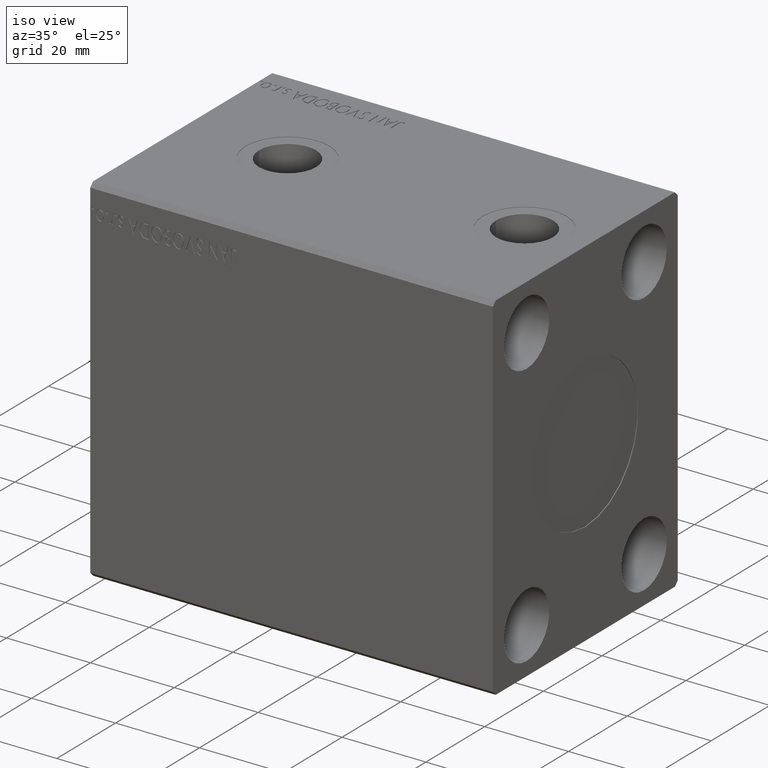
[diagram: clean part render]
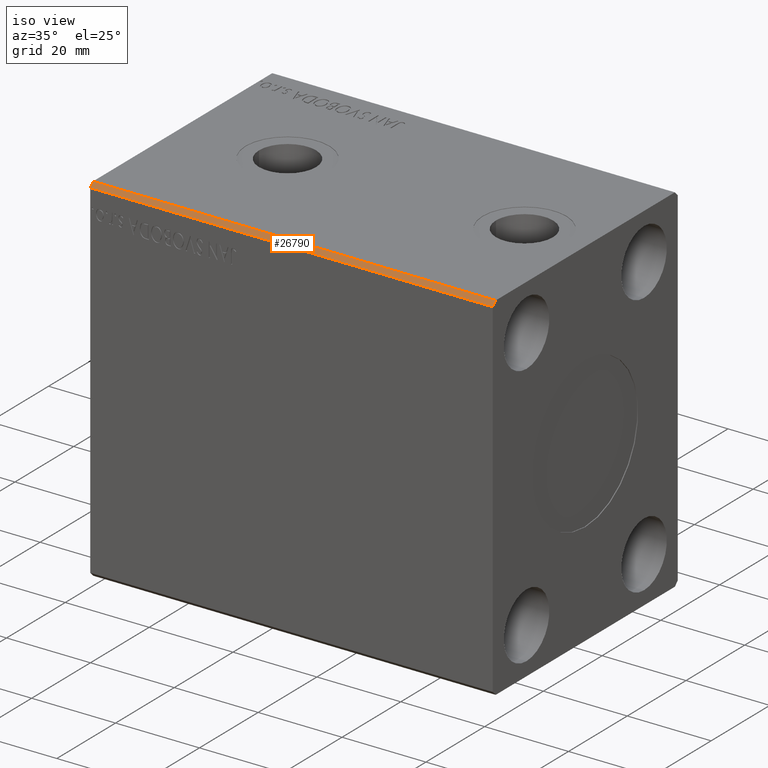
[diagram: same view with one face highlighted and labeled with its STEP entity id]
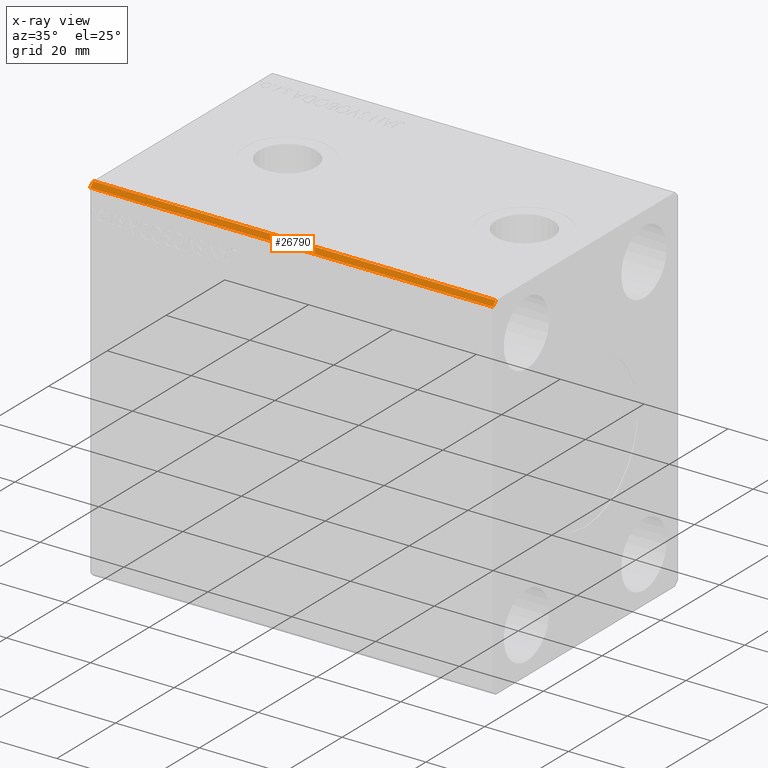
[diagram: x-ray of the same camera — body ghosted, the highlighted face saturated]
A machine part, iso view. The second image highlights one B-rep face of the part: STEP entity #26790.
The next image is the same camera in x-ray: the body ghosted, the highlighted face saturated — about 0% of this face is hidden behind the body in this view.
In plain terms, the highlighted planar face has unit normal (0, 0.7071, -0.7071).
Its self-contained STEP definition (entity closure, byte-faithful):
#260 = VECTOR ( 'NONE', #9717, 999.9999999999998863 ) ;
#507 = DIRECTION ( 'NONE',  ( 0.000000000000000000, 0.7071067811865487940, -0.7071067811865462405 ) ) ;
#714 = FACE_OUTER_BOUND ( 'NONE', #12248, .T. ) ;
#1580 = CARTESIAN_POINT ( 'NONE',  ( 96.00000000000000000, -31.50000000000000000, 41.49999999999999289 ) ) ;
#1790 = LINE ( 'NONE', #1580, #36949 ) ;
#3727 = DIRECTION ( 'NONE',  ( 0.000000000000000000, 0.7071067811865462405, 0.7071067811865487940 ) ) ;
#4194 = VERTEX_POINT ( 'NONE', #24652 ) ;
#4344 = VECTOR ( 'NONE', #23794, 1000.000000000000000 ) ;
#5612 = ORIENTED_EDGE ( 'NONE', *, *, #16651, .T. ) ;
#5986 = AXIS2_PLACEMENT_3D ( 'NONE', #39393, #507, #3727 ) ;
#6614 = ORIENTED_EDGE ( 'NONE', *, *, #29897, .F. ) ;
#9300 = VECTOR ( 'NONE', #23186, 999.9999999999998863 ) ;
#9717 = DIRECTION ( 'NONE',  ( 0.000000000000000000, -0.7071067811865462405, -0.7071067811865489050 ) ) ;
#10071 = LINE ( 'NONE', #29416, #9300 ) ;
#10177 = PLANE ( 'NONE',  #5986 ) ;
#10465 = CARTESIAN_POINT ( 'NONE',  ( 96.00000000000000000, -30.50000000000000355, 42.49999999999999289 ) ) ;
#12248 = EDGE_LOOP ( 'NONE', ( #5612, #6614, #37692, #41190 ) ) ;
#14900 = EDGE_CURVE ( 'NONE', #4194, #42097, #26792, .T. ) ;
#16651 = EDGE_CURVE ( 'NONE', #42097, #18412, #39362, .T. ) ;
#17107 = CARTESIAN_POINT ( 'NONE',  ( 0.000000000000000000, -31.50000000000000000, 41.49999999999999289 ) ) ;
#18412 = VERTEX_POINT ( 'NONE', #17107 ) ;
#22417 = EDGE_CURVE ( 'NONE', #4194, #24331, #10071, .T. ) ;
#23186 = DIRECTION ( 'NONE',  ( 0.000000000000000000, -0.7071067811865462405, -0.7071067811865489050 ) ) ;
#23794 = DIRECTION ( 'NONE',  ( -1.000000000000000000, -0.000000000000000000, -0.000000000000000000 ) ) ;
#24331 = VERTEX_POINT ( 'NONE', #27183 ) ;
#24652 = CARTESIAN_POINT ( 'NONE',  ( 96.00000000000000000, -30.50000000000000355, 42.49999999999999289 ) ) ;
#26046 = CARTESIAN_POINT ( 'NONE',  ( 0.000000000000000000, -30.50000000000000355, 42.49999999999999289 ) ) ;
#26790 = ADVANCED_FACE ( 'NONE', ( #714 ), #10177, .F. ) ;
#26792 = LINE ( 'NONE', #10465, #4344 ) ;
#27183 = CARTESIAN_POINT ( 'NONE',  ( 96.00000000000000000, -31.50000000000000000, 41.49999999999999289 ) ) ;
#29416 = CARTESIAN_POINT ( 'NONE',  ( 96.00000000000000000, -30.50000000000000355, 42.49999999999999289 ) ) ;
#29897 = EDGE_CURVE ( 'NONE', #24331, #18412, #1790, .T. ) ;
#31639 = DIRECTION ( 'NONE',  ( -1.000000000000000000, -0.000000000000000000, -0.000000000000000000 ) ) ;
#36949 = VECTOR ( 'NONE', #31639, 1000.000000000000000 ) ;
#37692 = ORIENTED_EDGE ( 'NONE', *, *, #22417, .F. ) ;
#38638 = CARTESIAN_POINT ( 'NONE',  ( 0.000000000000000000, -30.50000000000000355, 42.49999999999999289 ) ) ;
#39362 = LINE ( 'NONE', #26046, #260 ) ;
#39393 = CARTESIAN_POINT ( 'NONE',  ( 96.00000000000000000, -30.50000000000000355, 42.49999999999999289 ) ) ;
#41190 = ORIENTED_EDGE ( 'NONE', *, *, #14900, .T. ) ;
#42097 = VERTEX_POINT ( 'NONE', #38638 ) ;